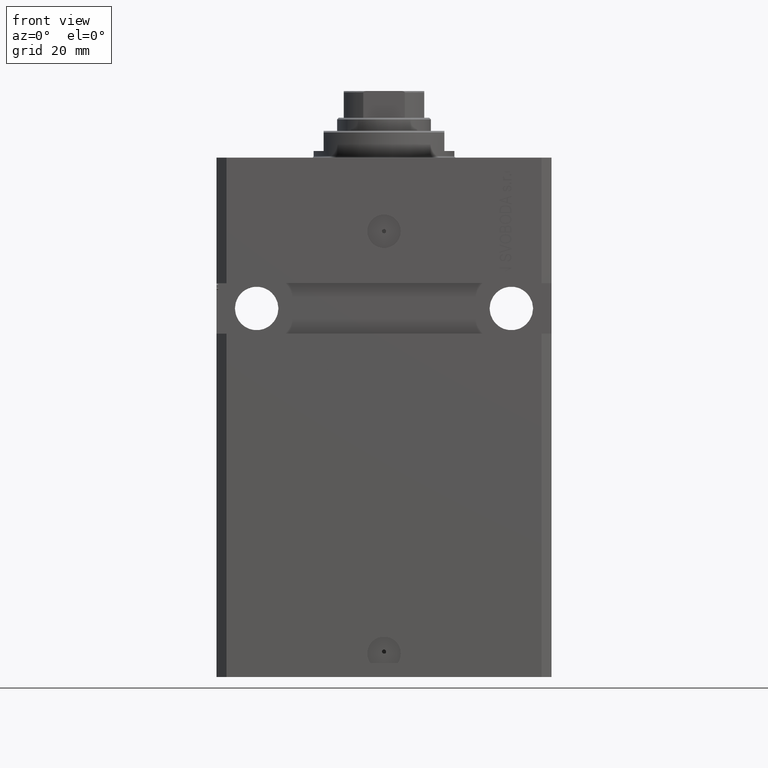
[diagram: clean part render]
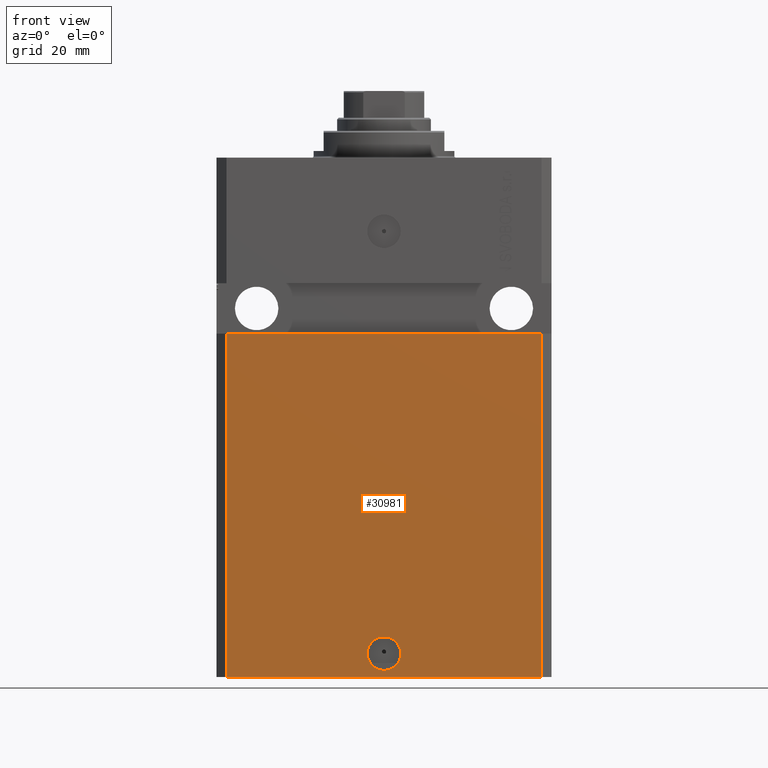
[diagram: same view with one face highlighted and labeled with its STEP entity id]
A machine part, front view. The second image highlights one B-rep face of the part: STEP entity #30981.
In plain terms, the highlighted planar face has unit normal (-0, -1, 0).
Its self-contained STEP definition (entity closure, byte-faithful):
#139 = CARTESIAN_POINT ( 'NONE',  ( -47.00000000000000000, -37.49999999999999289, -155.0000000000000000 ) ) ;
#855 = CARTESIAN_POINT ( 'NONE',  ( 47.00000000000000000, -37.49999999999999289, -52.49999999999998579 ) ) ;
#1310 = FACE_OUTER_BOUND ( 'NONE', #17456, .T. ) ;
#2272 = ORIENTED_EDGE ( 'NONE', *, *, #11822, .T. ) ;
#3203 = CARTESIAN_POINT ( 'NONE',  ( 47.00000000000000000, -37.50000000000000711, -155.0000000000000000 ) ) ;
#4325 = ORIENTED_EDGE ( 'NONE', *, *, #6254, .F. ) ;
#4410 = DIRECTION ( 'NONE',  ( 1.176083712526788232E-16, -1.000000000000000000, 0.000000000000000000 ) ) ;
#4661 = DIRECTION ( 'NONE',  ( 1.000000000000000000, 0.000000000000000000, 0.000000000000000000 ) ) ;
#4722 = DIRECTION ( 'NONE',  ( -1.476360405086644309E-16, -1.000000000000000000, 0.000000000000000000 ) ) ;
#6254 = EDGE_CURVE ( 'NONE', #19985, #31013, #46473, .T. ) ;
#7656 = VECTOR ( 'NONE', #24489, 1000.000000000000000 ) ;
#8897 = CARTESIAN_POINT ( 'NONE',  ( -47.00000000000000000, -37.49999999999999289, -155.0000000000000000 ) ) ;
#8940 = EDGE_CURVE ( 'NONE', #35168, #11977, #42516, .T. ) ;
#9728 = VERTEX_POINT ( 'NONE', #855 ) ;
#11822 = EDGE_CURVE ( 'NONE', #21301, #9728, #25377, .T. ) ;
#11977 = VERTEX_POINT ( 'NONE', #18287 ) ;
#13686 = ORIENTED_EDGE ( 'NONE', *, *, #8940, .F. ) ;
#14612 = ORIENTED_EDGE ( 'NONE', *, *, #19199, .T. ) ;
#15684 = DIRECTION ( 'NONE',  ( 1.000000000000000000, -1.476360405086644309E-16, 0.000000000000000000 ) ) ;
#16170 = CARTESIAN_POINT ( 'NONE',  ( -47.00000000000000000, -37.49999999999999289, -155.0000000000000000 ) ) ;
#16857 = EDGE_CURVE ( 'NONE', #31013, #19985, #45019, .T. ) ;
#17456 = EDGE_LOOP ( 'NONE', ( #25298, #13686, #14612, #2272 ) ) ;
#17920 = EDGE_LOOP ( 'NONE', ( #42904, #4325 ) ) ;
#18287 = CARTESIAN_POINT ( 'NONE',  ( -46.99999999999998579, -37.50000000000000711, -52.50000000000000000 ) ) ;
#19199 = EDGE_CURVE ( 'NONE', #35168, #21301, #41072, .T. ) ;
#19985 = VERTEX_POINT ( 'NONE', #44152 ) ;
#21301 = VERTEX_POINT ( 'NONE', #44222 ) ;
#24489 = DIRECTION ( 'NONE',  ( 0.000000000000000000, 0.000000000000000000, 1.000000000000000000 ) ) ;
#24569 = EDGE_CURVE ( 'NONE', #11977, #9728, #42108, .T. ) ;
#25298 = ORIENTED_EDGE ( 'NONE', *, *, #24569, .F. ) ;
#25377 = LINE ( 'NONE', #3203, #31111 ) ;
#25558 = CARTESIAN_POINT ( 'NONE',  ( -47.00000000000000000, -37.49999999999999289, -155.0000000000000000 ) ) ;
#26719 = DIRECTION ( 'NONE',  ( 1.000000000000000000, 0.000000000000000000, 0.000000000000000000 ) ) ;
#28742 = AXIS2_PLACEMENT_3D ( 'NONE', #30363, #30608, #26719 ) ;
#28789 = DIRECTION ( 'NONE',  ( 0.000000000000000000, 0.000000000000000000, 1.000000000000000000 ) ) ;
#30363 = CARTESIAN_POINT ( 'NONE',  ( -5.536351519074916863E-15, -37.50000000000000000, -148.0000000000000000 ) ) ;
#30608 = DIRECTION ( 'NONE',  ( 1.176083712526788232E-16, -1.000000000000000000, 0.000000000000000000 ) ) ;
#30613 = AXIS2_PLACEMENT_3D ( 'NONE', #16170, #4722, #15684 ) ;
#30981 = ADVANCED_FACE ( 'NONE', ( #31513, #1310 ), #38096, .T. ) ;
#31013 = VERTEX_POINT ( 'NONE', #34179 ) ;
#31111 = VECTOR ( 'NONE', #28789, 1000.000000000000000 ) ;
#31513 = FACE_BOUND ( 'NONE', #17920, .T. ) ;
#31873 = DIRECTION ( 'NONE',  ( 1.000000000000000000, 1.387778780781445182E-16, 1.387778780781445182E-16 ) ) ;
#34179 = CARTESIAN_POINT ( 'NONE',  ( 5.000000000000000888, -37.50000000000000000, -148.0000000000000000 ) ) ;
#35041 = CARTESIAN_POINT ( 'NONE',  ( -50.00000000000002842, -37.50000000000000711, -52.50000000000000000 ) ) ;
#35168 = VERTEX_POINT ( 'NONE', #25558 ) ;
#36761 = VECTOR ( 'NONE', #31873, 1000.000000000000000 ) ;
#37780 = CARTESIAN_POINT ( 'NONE',  ( -5.536351519074916863E-15, -37.50000000000000000, -148.0000000000000000 ) ) ;
#38096 = PLANE ( 'NONE',  #30613 ) ;
#38716 = AXIS2_PLACEMENT_3D ( 'NONE', #37780, #4410, #4661 ) ;
#41072 = LINE ( 'NONE', #139, #47479 ) ;
#42108 = LINE ( 'NONE', #35041, #36761 ) ;
#42516 = LINE ( 'NONE', #8897, #7656 ) ;
#42904 = ORIENTED_EDGE ( 'NONE', *, *, #16857, .F. ) ;
#44152 = CARTESIAN_POINT ( 'NONE',  ( -5.000000000000011546, -37.50000000000000000, -148.0000000000000000 ) ) ;
#44222 = CARTESIAN_POINT ( 'NONE',  ( 47.00000000000000000, -37.50000000000000711, -155.0000000000000000 ) ) ;
#44731 = DIRECTION ( 'NONE',  ( 1.000000000000000000, -1.476360405086644309E-16, 0.000000000000000000 ) ) ;
#45019 = CIRCLE ( 'NONE', #28742, 5.000000000000006217 ) ;
#46473 = CIRCLE ( 'NONE', #38716, 5.000000000000006217 ) ;
#47479 = VECTOR ( 'NONE', #44731, 1000.000000000000000 ) ;